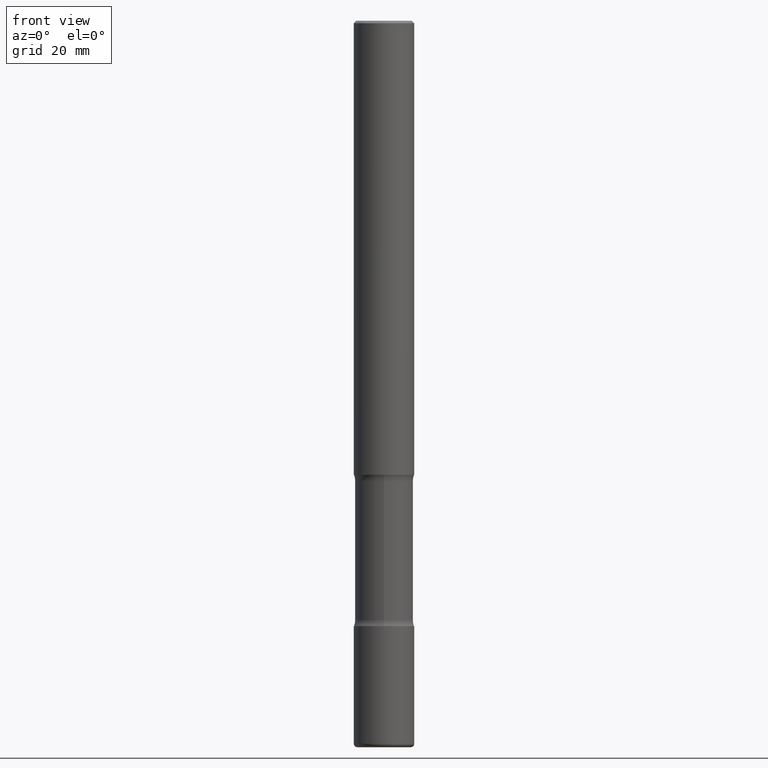
[diagram: clean part render]
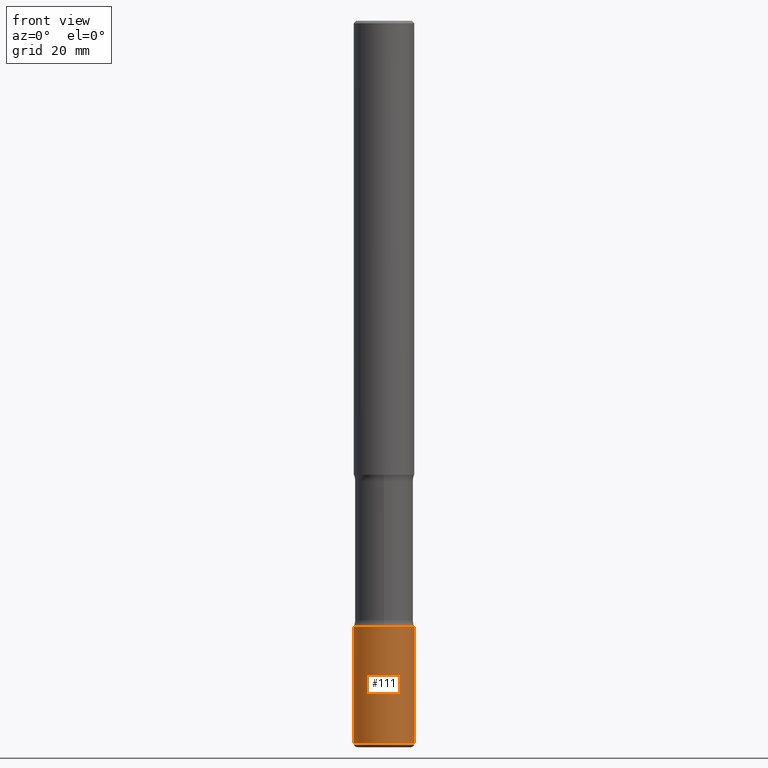
[diagram: same view with one face highlighted and labeled with its STEP entity id]
A machine part, front view. The second image highlights one B-rep face of the part: STEP entity #111.
In plain terms, the highlighted cylindrical surface (edge-blend (fillet) strip) has radius 6.35 mm, axis along (-0, 0, 1).
Its self-contained STEP definition (entity closure, byte-faithful):
#21 = CARTESIAN_POINT ( 'NONE',  ( 0.2500000000000002220, -1.745740669421568255E-15, 1.219044193948984929E-29 ) ) ;
#31 = CARTESIAN_POINT ( 'NONE',  ( 1.459944877292526494E-28, -2.084414359289357934E-14, -5.969999999999999751 ) ) ;
#34 = VECTOR ( 'NONE', #105, 39.37007874015748143 ) ;
#56 = CYLINDRICAL_SURFACE ( 'NONE', #63, 0.2500000000000002220 ) ;
#63 = AXIS2_PLACEMENT_3D ( 'NONE', #278, #448, #156 ) ;
#89 = DIRECTION ( 'NONE',  ( -2.445468806185136877E-29, 3.491481338843145188E-15, 1.000000000000000000 ) ) ;
#94 = EDGE_CURVE ( 'NONE', #494, #388, #106, .T. ) ;
#95 = VERTEX_POINT ( 'NONE', #363 ) ;
#101 = DIRECTION ( 'NONE',  ( 1.000000000000000000, -6.982962677686265922E-15, 0.000000000000000000 ) ) ;
#103 = VERTEX_POINT ( 'NONE', #112 ) ;
#105 = DIRECTION ( 'NONE',  ( -2.445468806185136877E-29, 3.491481338843145188E-15, 1.000000000000000000 ) ) ;
#106 = CIRCLE ( 'NONE', #338, 0.2500000000000001665 ) ;
#111 = ADVANCED_FACE ( 'NONE', ( #541 ), #56, .T. ) ;
#112 = CARTESIAN_POINT ( 'NONE',  ( 0.2500000000000003331, -2.258988426231514917E-14, -5.969999999999999751 ) ) ;
#137 = ORIENTED_EDGE ( 'NONE', *, *, #94, .F. ) ;
#141 = DIRECTION ( 'NONE',  ( -2.445468806185136597E-29, 3.491481338843145583E-15, 1.000000000000000000 ) ) ;
#143 = EDGE_LOOP ( 'NONE', ( #492, #385, #485, #137 ) ) ;
#156 = DIRECTION ( 'NONE',  ( 1.000000000000000000, -6.982962677686266711E-15, 4.876176775795935232E-29 ) ) ;
#178 = EDGE_CURVE ( 'NONE', #103, #388, #233, .T. ) ;
#232 = CIRCLE ( 'NONE', #555, 0.2500000000000002220 ) ;
#233 = LINE ( 'NONE', #21, #34 ) ;
#244 = EDGE_CURVE ( 'NONE', #95, #103, #232, .T. ) ;
#251 = LINE ( 'NONE', #472, #489 ) ;
#273 = DIRECTION ( 'NONE',  ( -2.445468806185136597E-29, 3.491481338843145583E-15, 1.000000000000000000 ) ) ;
#278 = CARTESIAN_POINT ( 'NONE',  ( 0.000000000000000000, 0.000000000000000000, 0.000000000000000000 ) ) ;
#309 = DIRECTION ( 'NONE',  ( 1.000000000000000000, -6.982962677686272233E-15, 0.000000000000000000 ) ) ;
#318 = CARTESIAN_POINT ( 'NONE',  ( -0.2500000000000001665, -1.737441830415440257E-14, -5.000000000000000000 ) ) ;
#338 = AXIS2_PLACEMENT_3D ( 'NONE', #352, #141, #101 ) ;
#352 = CARTESIAN_POINT ( 'NONE',  ( 1.222734403092568523E-28, -1.745740669421572989E-14, -5.000000000000000000 ) ) ;
#363 = CARTESIAN_POINT ( 'NONE',  ( -0.2500000000000003331, -1.906778675349332572E-14, -5.969999999999999751 ) ) ;
#385 = ORIENTED_EDGE ( 'NONE', *, *, #244, .T. ) ;
#388 = VERTEX_POINT ( 'NONE', #480 ) ;
#413 = EDGE_CURVE ( 'NONE', #95, #494, #251, .T. ) ;
#448 = DIRECTION ( 'NONE',  ( -2.445468806185136597E-29, 3.491481338843145583E-15, 1.000000000000000000 ) ) ;
#472 = CARTESIAN_POINT ( 'NONE',  ( -0.2500000000000002220, 1.776356839400252042E-15, -1.229733772563727566E-29 ) ) ;
#480 = CARTESIAN_POINT ( 'NONE',  ( 0.2500000000000001665, -1.920314736363729656E-14, -5.000000000000000000 ) ) ;
#485 = ORIENTED_EDGE ( 'NONE', *, *, #178, .T. ) ;
#489 = VECTOR ( 'NONE', #89, 39.37007874015748143 ) ;
#492 = ORIENTED_EDGE ( 'NONE', *, *, #413, .F. ) ;
#494 = VERTEX_POINT ( 'NONE', #318 ) ;
#541 = FACE_OUTER_BOUND ( 'NONE', #143, .T. ) ;
#555 = AXIS2_PLACEMENT_3D ( 'NONE', #31, #273, #309 ) ;